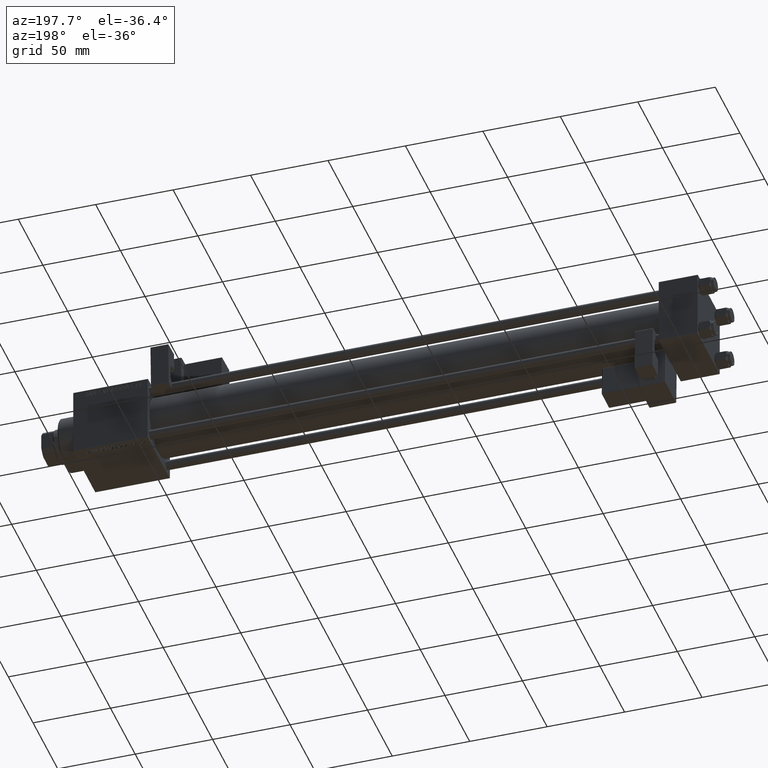
[diagram: clean part render]
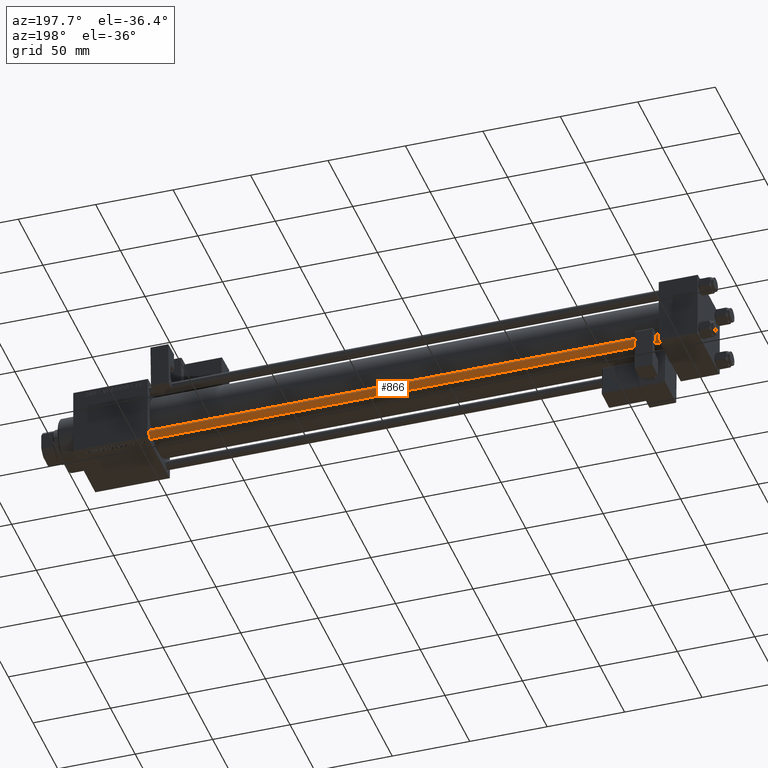
[diagram: same view with one face highlighted and labeled with its STEP entity id]
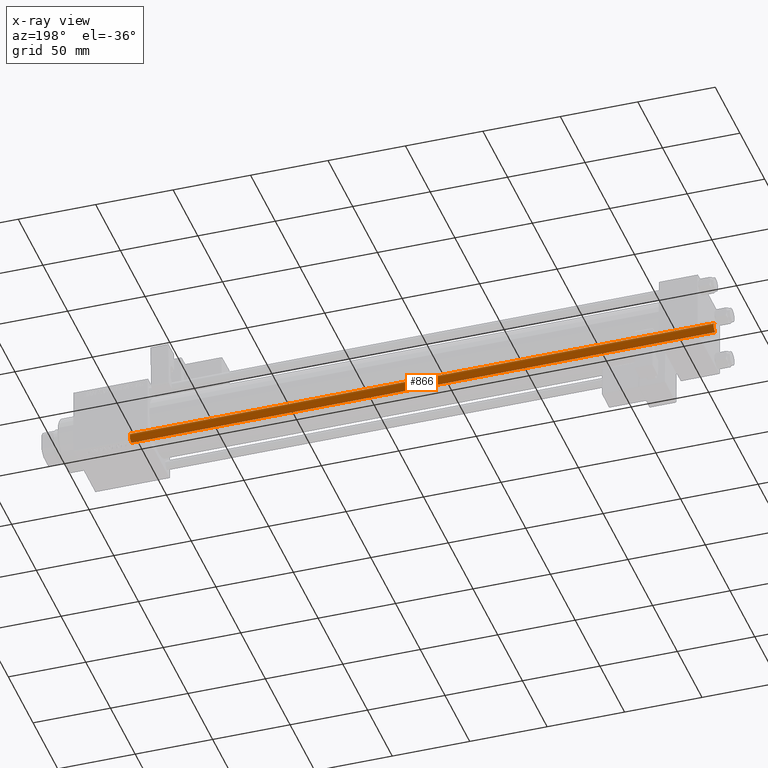
[diagram: x-ray of the same camera — body ghosted, the highlighted face saturated]
A machine part, auxiliary view. The second image highlights one B-rep face of the part: STEP entity #866.
The next image is the same camera in x-ray: the body ghosted, the highlighted face saturated — about 0% of this face is hidden behind the body in this view.
In plain terms, the highlighted cylindrical surface (edge-blend (fillet) strip) has radius 3 mm, axis along (1, -0, 0).
Its self-contained STEP definition (entity closure, byte-faithful):
#866 = ADVANCED_FACE ( 'NONE', ( #12540 ), #24236, .T. ) ;
#1873 = VERTEX_POINT ( 'NONE', #32143 ) ;
#2998 = VECTOR ( 'NONE', #30612, 1000.000000000000000 ) ;
#3578 = DIRECTION ( 'NONE',  ( -1.000000000000000000, 0.000000000000000000, 0.000000000000000000 ) ) ;
#3775 = CIRCLE ( 'NONE', #35925, 3.000000000000000444 ) ;
#3812 = EDGE_CURVE ( 'NONE', #36195, #1873, #3775, .T. ) ;
#4085 = LINE ( 'NONE', #20683, #22801 ) ;
#5066 = CARTESIAN_POINT ( 'NONE',  ( 3.000000000000000444, 3.673940397442060361E-16, 0.5000000000000004441 ) ) ;
#5797 = VERTEX_POINT ( 'NONE', #18915 ) ;
#6151 = LINE ( 'NONE', #47198, #2998 ) ;
#6566 = EDGE_CURVE ( 'NONE', #21722, #1873, #6151, .T. ) ;
#8428 = DIRECTION ( 'NONE',  ( 1.000000000000000000, 0.000000000000000000, 0.000000000000000000 ) ) ;
#8730 = DIRECTION ( 'NONE',  ( 0.000000000000000000, 0.000000000000000000, -1.000000000000000000 ) ) ;
#10167 = ORIENTED_EDGE ( 'NONE', *, *, #6566, .F. ) ;
#10469 = ORIENTED_EDGE ( 'NONE', *, *, #3812, .T. ) ;
#11196 = CARTESIAN_POINT ( 'NONE',  ( 0.000000000000000000, 0.000000000000000000, 0.5000000000000004441 ) ) ;
#12526 = DIRECTION ( 'NONE',  ( -0.000000000000000000, -0.000000000000000000, 1.000000000000000000 ) ) ;
#12540 = FACE_OUTER_BOUND ( 'NONE', #14267, .T. ) ;
#14267 = EDGE_LOOP ( 'NONE', ( #21379, #27262, #10469, #10167 ) ) ;
#17700 = DIRECTION ( 'NONE',  ( 1.000000000000000000, 0.000000000000000000, 0.000000000000000000 ) ) ;
#18915 = CARTESIAN_POINT ( 'NONE',  ( 3.000000000000000444, 3.673940397442060361E-16, 377.5000000000000000 ) ) ;
#18919 = EDGE_CURVE ( 'NONE', #21722, #5797, #52822, .T. ) ;
#19317 = AXIS2_PLACEMENT_3D ( 'NONE', #53313, #28839, #3578 ) ;
#20683 = CARTESIAN_POINT ( 'NONE',  ( 3.000000000000000444, 3.673940397442060361E-16, 378.0000000000000000 ) ) ;
#21379 = ORIENTED_EDGE ( 'NONE', *, *, #18919, .T. ) ;
#21722 = VERTEX_POINT ( 'NONE', #24072 ) ;
#22801 = VECTOR ( 'NONE', #37275, 1000.000000000000000 ) ;
#24072 = CARTESIAN_POINT ( 'NONE',  ( -3.000000000000000444, 0.000000000000000000, 377.5000000000000000 ) ) ;
#24236 = CYLINDRICAL_SURFACE ( 'NONE', #19317, 3.000000000000000444 ) ;
#27262 = ORIENTED_EDGE ( 'NONE', *, *, #27316, .T. ) ;
#27316 = EDGE_CURVE ( 'NONE', #5797, #36195, #4085, .T. ) ;
#28839 = DIRECTION ( 'NONE',  ( -0.000000000000000000, -0.000000000000000000, -1.000000000000000000 ) ) ;
#30612 = DIRECTION ( 'NONE',  ( -0.000000000000000000, -0.000000000000000000, -1.000000000000000000 ) ) ;
#32143 = CARTESIAN_POINT ( 'NONE',  ( -3.000000000000000444, 0.000000000000000000, 0.5000000000000004441 ) ) ;
#35498 = AXIS2_PLACEMENT_3D ( 'NONE', #46790, #8730, #17700 ) ;
#35925 = AXIS2_PLACEMENT_3D ( 'NONE', #11196, #12526, #8428 ) ;
#36195 = VERTEX_POINT ( 'NONE', #5066 ) ;
#37275 = DIRECTION ( 'NONE',  ( -0.000000000000000000, -0.000000000000000000, -1.000000000000000000 ) ) ;
#46790 = CARTESIAN_POINT ( 'NONE',  ( 0.000000000000000000, 0.000000000000000000, 377.5000000000000000 ) ) ;
#47198 = CARTESIAN_POINT ( 'NONE',  ( -3.000000000000000444, 0.000000000000000000, 378.0000000000000000 ) ) ;
#52822 = CIRCLE ( 'NONE', #35498, 3.000000000000000444 ) ;
#53313 = CARTESIAN_POINT ( 'NONE',  ( 0.000000000000000000, 0.000000000000000000, 378.0000000000000000 ) ) ;